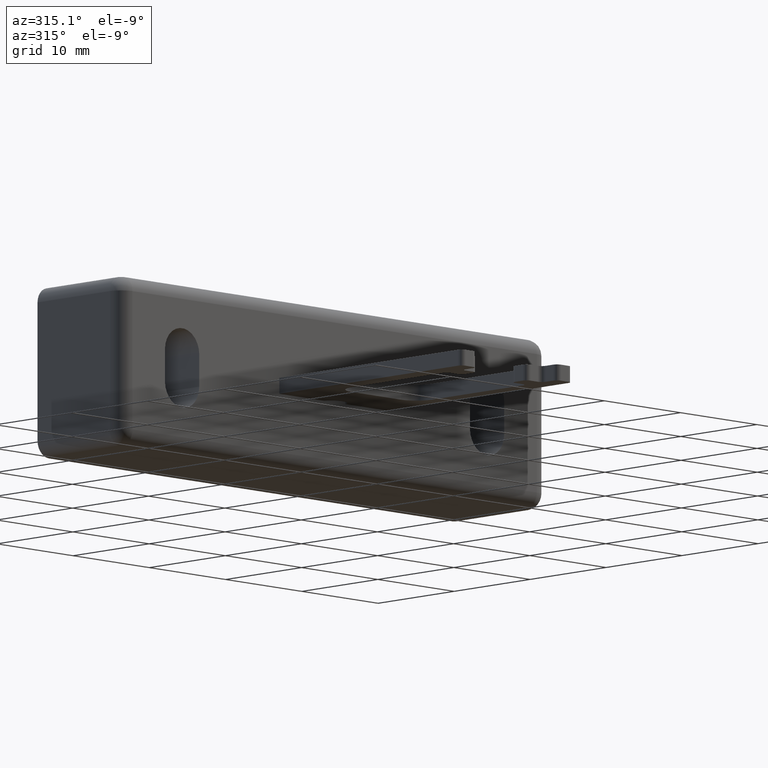
[diagram: clean part render]
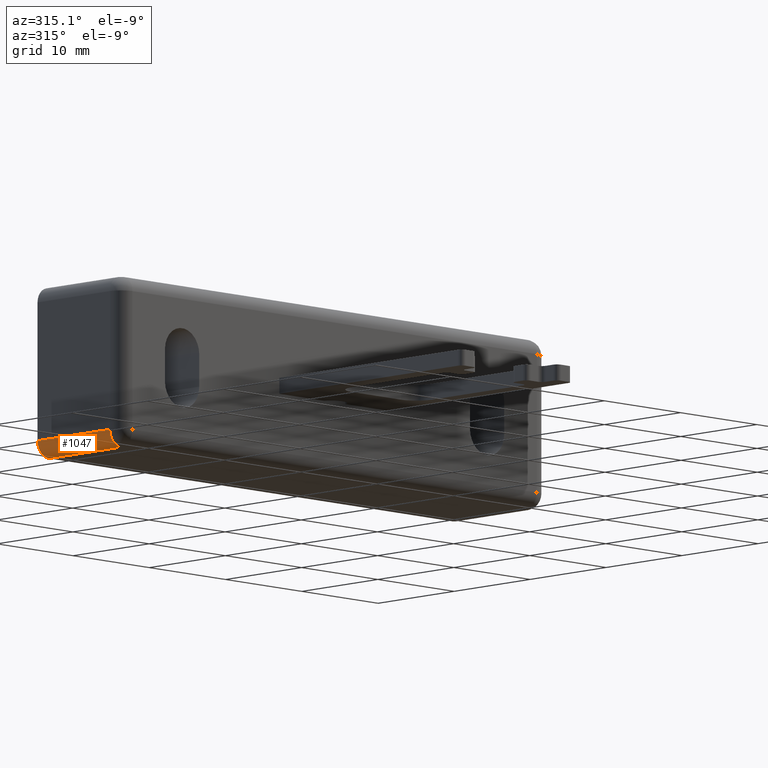
[diagram: same view with one face highlighted and labeled with its STEP entity id]
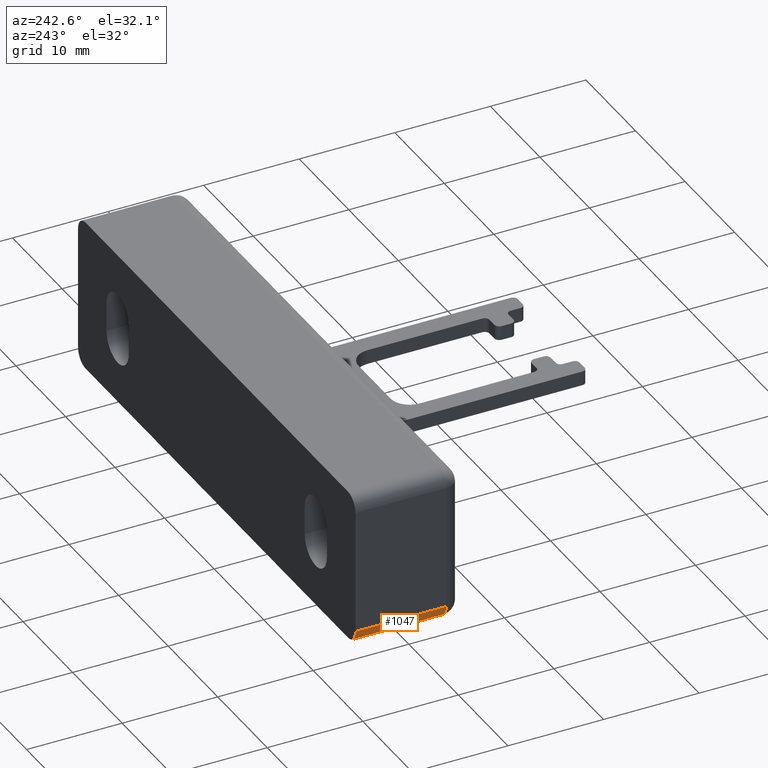
[diagram: same view with one face highlighted and labeled with its STEP entity id]
A machine part, auxiliary view. The second image highlights one B-rep face of the part: STEP entity #1047.
A second angle (auxiliary view) of the same face is appended — the face is thin or edge-on in the first view.
In plain terms, the highlighted cylindrical surface (edge-blend (fillet) strip) has radius 1.5 mm, axis along (0, -1, 0).
Its self-contained STEP definition (entity closure, byte-faithful):
#64=LINE('',#1601,#166);
#65=LINE('',#1602,#167);
#166=VECTOR('',#1268,9.5);
#167=VECTOR('',#1269,9.5);
#266=CYLINDRICAL_SURFACE('',#1122,1.5);
#297=FACE_OUTER_BOUND('',#357,.T.);
#357=EDGE_LOOP('',(#745,#746,#747,#748));
#424=CIRCLE('',#1117,1.5);
#427=CIRCLE('',#1123,1.5);
#478=VERTEX_POINT('',#1585);
#479=VERTEX_POINT('',#1586);
#481=VERTEX_POINT('',#1598);
#482=VERTEX_POINT('',#1599);
#578=EDGE_CURVE('',#478,#479,#424,.F.);
#585=EDGE_CURVE('',#481,#482,#427,.T.);
#586=EDGE_CURVE('',#482,#478,#64,.T.);
#587=EDGE_CURVE('',#479,#481,#65,.T.);
#745=ORIENTED_EDGE('',*,*,#585,.T.);
#746=ORIENTED_EDGE('',*,*,#586,.T.);
#747=ORIENTED_EDGE('',*,*,#578,.T.);
#748=ORIENTED_EDGE('',*,*,#587,.T.);
#1047=ADVANCED_FACE('',(#297),#266,.T.);
#1117=AXIS2_PLACEMENT_3D('',#1587,#1250,#1251);
#1122=AXIS2_PLACEMENT_3D('',#1597,#1264,#1265);
#1123=AXIS2_PLACEMENT_3D('',#1600,#1266,#1267);
#1250=DIRECTION('center_axis',(7.40148683083439E-16,-1.,0.));
#1251=DIRECTION('ref_axis',(0.,0.,-1.));
#1264=DIRECTION('center_axis',(3.06161699786839E-16,-1.,0.));
#1265=DIRECTION('ref_axis',(-0.707106781186547,0.,-0.707106781186548));
#1266=DIRECTION('center_axis',(1.58603289232165E-16,-1.,0.));
#1267=DIRECTION('ref_axis',(-0.707106781186547,0.,-0.707106781186548));
#1268=DIRECTION('',(3.06161699786839E-16,-1.,0.));
#1269=DIRECTION('',(-3.06161699786839E-16,1.,0.));
#1585=CARTESIAN_POINT('',(1.5,1.5,0.));
#1586=CARTESIAN_POINT('',(-4.31410331845442E-16,1.5,1.5));
#1587=CARTESIAN_POINT('Origin',(1.5,1.5,1.5));
#1597=CARTESIAN_POINT('Origin',(1.49999999999999,8.24999999999999,1.5));
#1598=CARTESIAN_POINT('',(-3.36777869765522E-15,11.,1.5));
#1599=CARTESIAN_POINT('',(1.49999999999999,11.,0.));
#1600=CARTESIAN_POINT('Origin',(1.49999999999999,11.,1.5));
#1601=CARTESIAN_POINT('',(1.49999999999999,8.24999999999999,0.));
#1602=CARTESIAN_POINT('',(-2.4980018054066E-15,8.24999999999999,1.5));